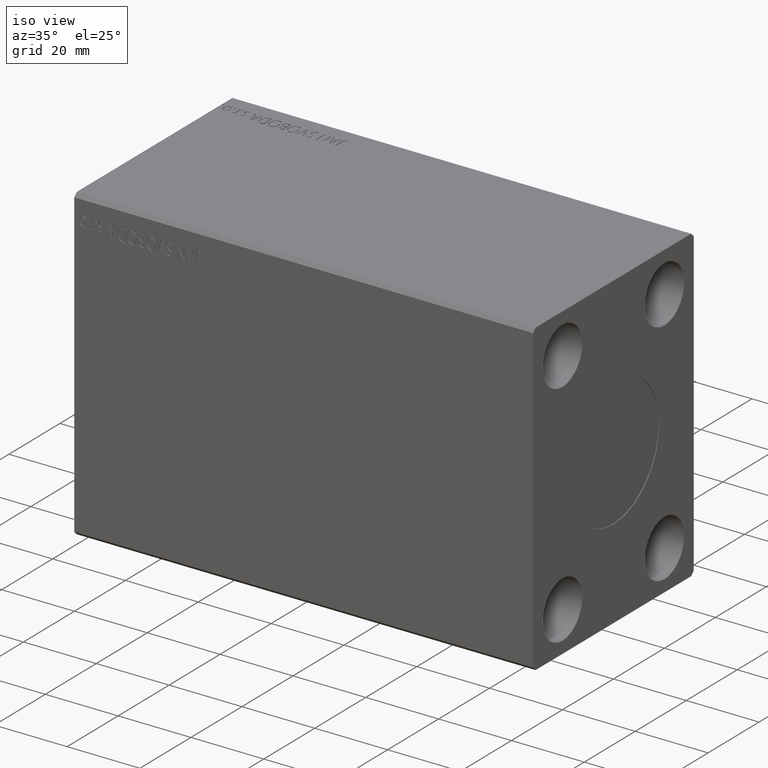
[diagram: clean part render]
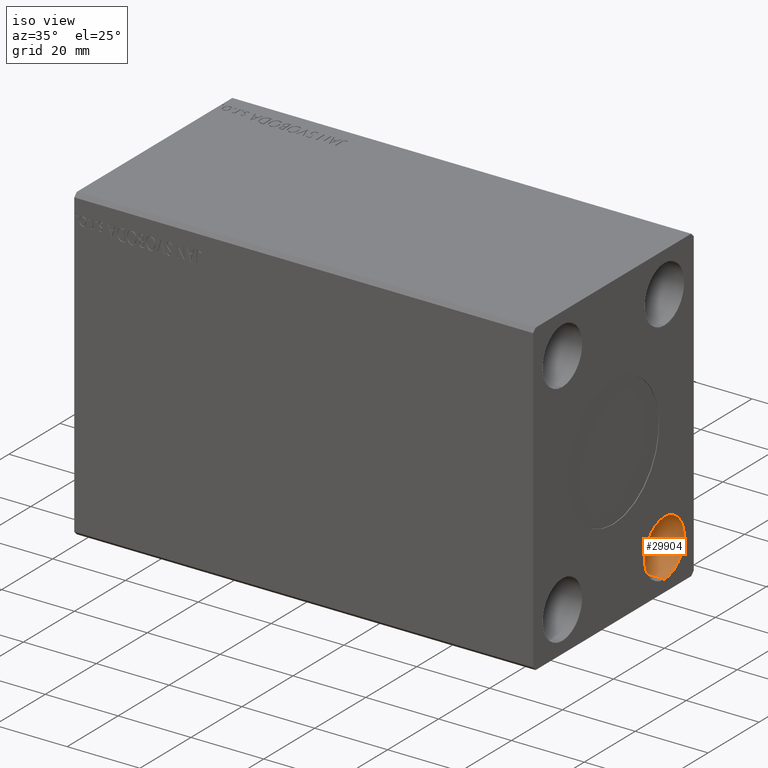
[diagram: same view with one face highlighted and labeled with its STEP entity id]
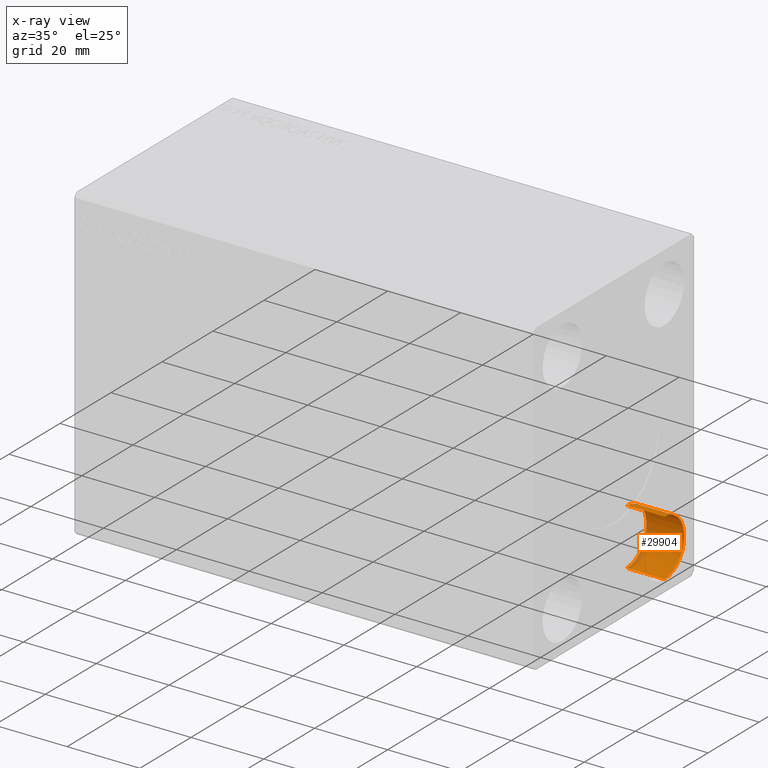
[diagram: x-ray of the same camera — body ghosted, the highlighted face saturated]
A machine part, iso view. The second image highlights one B-rep face of the part: STEP entity #29904.
The next image is the same camera in x-ray: the body ghosted, the highlighted face saturated — about 11% of this face is hidden behind the body in this view.
In plain terms, the highlighted cylindrical surface (edge-blend (fillet) strip) has radius 7.75 mm, axis along (1, -0, -0).
Its self-contained STEP definition (entity closure, byte-faithful):
#1176 = ORIENTED_EDGE ( 'NONE', *, *, #10101, .F. ) ;
#1296 = AXIS2_PLACEMENT_3D ( 'NONE', #9030, #7258, #16112 ) ;
#1631 = VECTOR ( 'NONE', #38102, 1000.000000000000000 ) ;
#2918 = VERTEX_POINT ( 'NONE', #23921 ) ;
#4576 = DIRECTION ( 'NONE',  ( 0.000000000000000000, 0.000000000000000000, 1.000000000000000000 ) ) ;
#4977 = ORIENTED_EDGE ( 'NONE', *, *, #15839, .T. ) ;
#5100 = DIRECTION ( 'NONE',  ( -1.000000000000000000, -0.000000000000000000, -0.000000000000000000 ) ) ;
#5314 = CARTESIAN_POINT ( 'NONE',  ( 126.0000000000000000, 20.00000000000000355, -31.49999999999998579 ) ) ;
#7258 = DIRECTION ( 'NONE',  ( 1.000000000000000000, -0.000000000000000000, -0.000000000000000000 ) ) ;
#9030 = CARTESIAN_POINT ( 'NONE',  ( 115.6700000000000017, 20.00000000000000355, -31.49999999999998579 ) ) ;
#10012 = AXIS2_PLACEMENT_3D ( 'NONE', #23687, #36780, #4576 ) ;
#10101 = EDGE_CURVE ( 'NONE', #2918, #42187, #14651, .T. ) ;
#10387 = EDGE_CURVE ( 'NONE', #20491, #2918, #18567, .T. ) ;
#10554 = LINE ( 'NONE', #33532, #25026 ) ;
#10764 = DIRECTION ( 'NONE',  ( 0.000000000000000000, 0.000000000000000000, 1.000000000000000000 ) ) ;
#12476 = ORIENTED_EDGE ( 'NONE', *, *, #10387, .F. ) ;
#13681 = CYLINDRICAL_SURFACE ( 'NONE', #1296, 7.750000000000000000 ) ;
#14651 = CIRCLE ( 'NONE', #27682, 7.750000000000000000 ) ;
#15839 = EDGE_CURVE ( 'NONE', #20491, #22793, #38092, .T. ) ;
#16112 = DIRECTION ( 'NONE',  ( 0.000000000000000000, 0.000000000000000000, -1.000000000000000000 ) ) ;
#17628 = DIRECTION ( 'NONE',  ( 1.000000000000000000, -0.000000000000000000, -0.000000000000000000 ) ) ;
#18567 = LINE ( 'NONE', #28882, #1631 ) ;
#19329 = EDGE_CURVE ( 'NONE', #22793, #42187, #10554, .T. ) ;
#19988 = CARTESIAN_POINT ( 'NONE',  ( 115.6700000000000017, 20.00000000000000355, -39.24999999999998579 ) ) ;
#20491 = VERTEX_POINT ( 'NONE', #24260 ) ;
#20888 = CARTESIAN_POINT ( 'NONE',  ( 126.0000000000000000, 20.00000000000000355, -39.24999999999998579 ) ) ;
#22793 = VERTEX_POINT ( 'NONE', #19988 ) ;
#23687 = CARTESIAN_POINT ( 'NONE',  ( 115.6700000000000017, 20.00000000000000355, -31.49999999999998579 ) ) ;
#23921 = CARTESIAN_POINT ( 'NONE',  ( 126.0000000000000000, 20.00000000000000355, -23.74999999999998579 ) ) ;
#24260 = CARTESIAN_POINT ( 'NONE',  ( 115.6700000000000017, 20.00000000000000355, -23.74999999999998579 ) ) ;
#25026 = VECTOR ( 'NONE', #17628, 1000.000000000000000 ) ;
#26783 = FACE_OUTER_BOUND ( 'NONE', #35883, .T. ) ;
#27682 = AXIS2_PLACEMENT_3D ( 'NONE', #5314, #5100, #10764 ) ;
#28882 = CARTESIAN_POINT ( 'NONE',  ( 115.6700000000000017, 20.00000000000000355, -23.74999999999998579 ) ) ;
#29904 = ADVANCED_FACE ( 'NONE', ( #26783 ), #13681, .F. ) ;
#32964 = ORIENTED_EDGE ( 'NONE', *, *, #19329, .T. ) ;
#33532 = CARTESIAN_POINT ( 'NONE',  ( 115.6700000000000017, 20.00000000000000355, -39.24999999999998579 ) ) ;
#35883 = EDGE_LOOP ( 'NONE', ( #12476, #4977, #32964, #1176 ) ) ;
#36780 = DIRECTION ( 'NONE',  ( -1.000000000000000000, -0.000000000000000000, -0.000000000000000000 ) ) ;
#38092 = CIRCLE ( 'NONE', #10012, 7.750000000000000000 ) ;
#38102 = DIRECTION ( 'NONE',  ( 1.000000000000000000, -0.000000000000000000, -0.000000000000000000 ) ) ;
#42187 = VERTEX_POINT ( 'NONE', #20888 ) ;